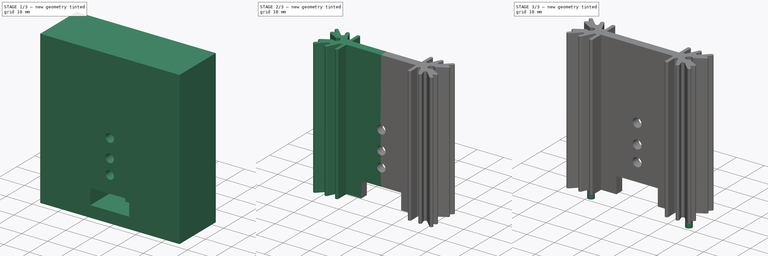
[diagram: build sequence overview — one tinted view per stage of 3, left to right]
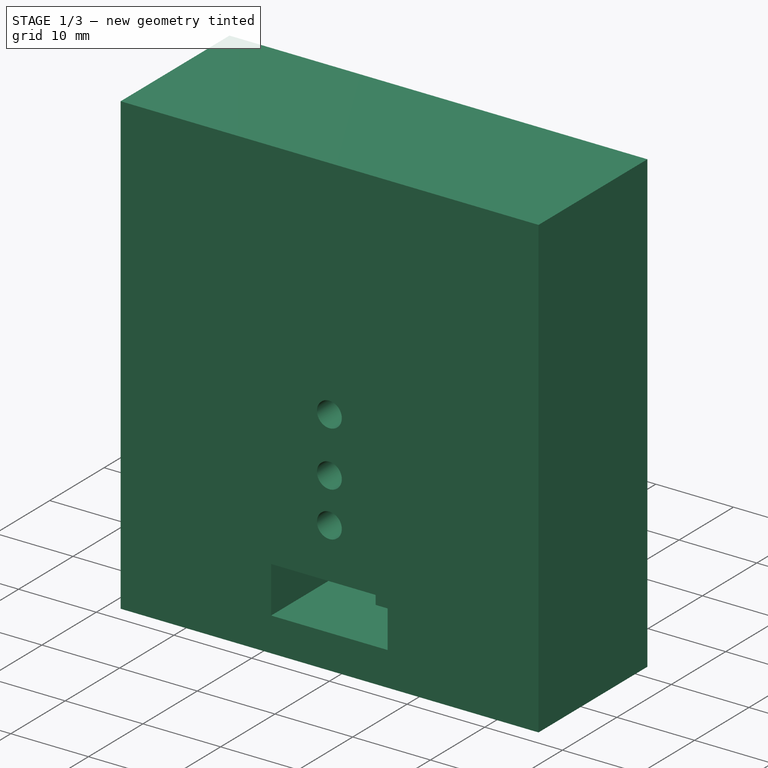
[diagram: stage 1 of 3 — iso view after this stage's code; geometry added in this stage tinted green]
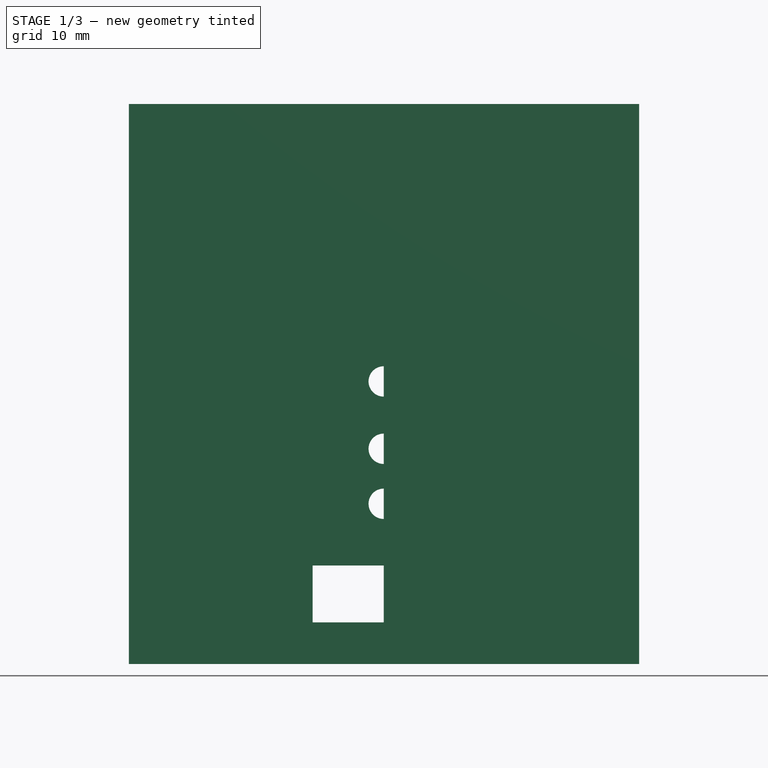
[diagram: stage 1 of 3 — front view after this stage's code; geometry added in this stage tinted green]
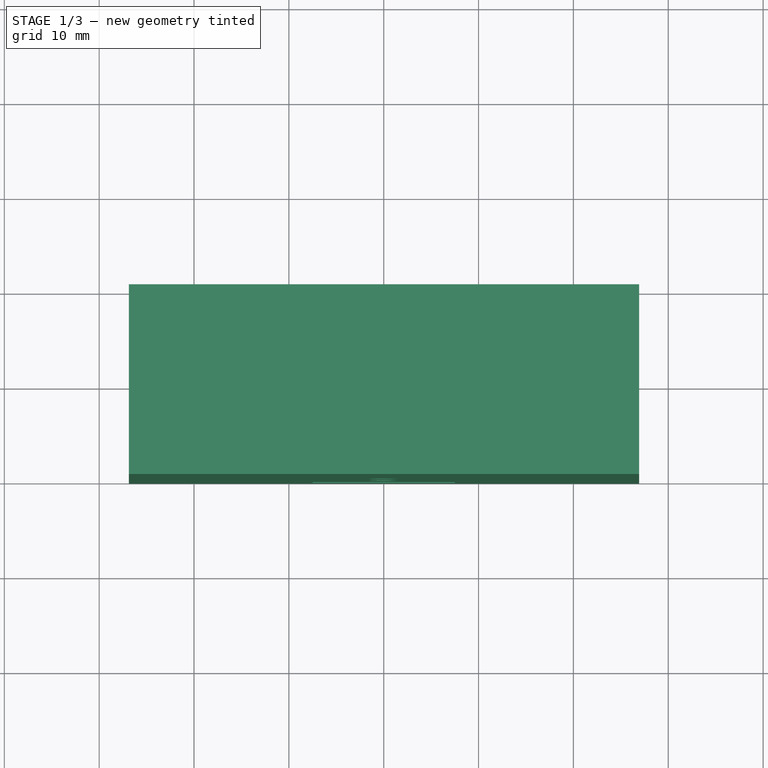
[diagram: stage 1 of 3 — top view after this stage's code; geometry added in this stage tinted green]
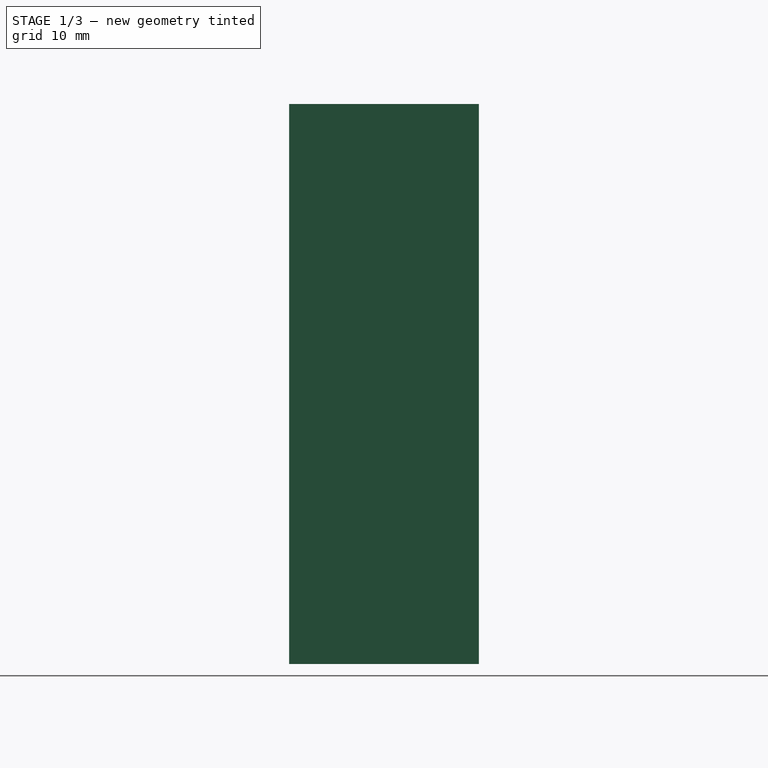
[diagram: stage 1 of 3 — right view after this stage's code; geometry added in this stage tinted green]
FCSTD DOCUMENT  (FreeCAD 0.17R13522 (Git))
Label: SK409_50,8_STS
License: All rights reserved
LicenseURL: http://en.wikipedia.org/wiki/All_rights_reserved
objects: Sketcher::SketchObject×4, Part::Extrusion×2, Image::ImagePlane×1, Part::Mirroring×1, Part::MultiFuse×1, PartDesign::Pad×1, PartDesign::Body×1, Part::MultiCommon×1, Part::Compound×1, Part::Feature×1
note: 14 computed .brp shape members not serialized (recipe doc carries the construction recipe); baked Part::Feature solids carry a one-line shape summary decoded from their .brp

FEATURE [Sketcher::SketchObject] Sketch
  MapMode = 5
  Support = -> [XY_Plane]
  sketch-geometry (34):
    g0: LineSegment StartX=13.1 StartY=-1.5 StartZ=0 EndX=13.1 EndY=-5.66811 EndZ=0
    g1: LineSegment StartX=18.6943 StartY=3.51719 StartZ=0 EndX=21.4471 EndY=6.19337 EndZ=0
    g2: LineSegment StartX=15.3567 StartY=2.27513 StartZ=0 EndX=17.0923 EndY=5.93894 EndZ=0
    g3: LineSegment StartX=18.1978 StartY=5.4753 StartZ=0 EndX=17.7128 EndY=4.15418 EndZ=0
    g4: ArcOfCircle CenterX=17.6346 CenterY=5.68207 CenterZ=0 NormalX=0 NormalY=0 NormalZ=1 AngleXU=0 Radius=0.6 StartAngle=5.93134 EndAngle=8.98237
    g5: LineSegment StartX=13.1 StartY=1.5 StartZ=0 EndX=13.1 EndY=5.66811 EndZ=0
    g6: LineSegment StartX=14.2998 StartY=5.65166 StartZ=0 EndX=14.2147 EndY=2.54845 EndZ=0
    g7: ArcOfCircle CenterX=13.7 CenterY=5.66811 CenterZ=0 NormalX=0 NormalY=0 NormalZ=1 AngleXU=0 Radius=0.6 StartAngle=6.25577 EndAngle=9.42478
    g8: ArcOfCircle CenterX=14.8145 CenterY=2.532 CenterZ=0 NormalX=0 NormalY=0 NormalZ=1 AngleXU=0 Radius=0.6 StartAngle=3.11418 EndAngle=5.84078
    g9: LineSegment StartX=22.2645 StartY=5.31514 StartZ=0 EndX=21.459 EndY=4.59763 EndZ=0
    g10: LineSegment StartX=21.6054 StartY=3.92003 StartZ=0 EndX=21.9862 EndY=3.80126 EndZ=0
    g11: LineSegment StartX=22.1017 StartY=2.70555 StartZ=0 EndX=18.6231 EndY=0.748471 EndZ=0
    g12: ArcOfCircle CenterX=17.75 CenterY=0 CenterZ=0 NormalX=0 NormalY=0 NormalZ=1 AngleXU=0 Radius=1.15 StartAngle=0.708696 EndAngle=5.62734
    g13: ArcOfCircle CenterX=18.276 CenterY=3.9474 CenterZ=0 NormalX=0 NormalY=0 NormalZ=1 AngleXU=0 Radius=0.6 StartAngle=2.78975 EndAngle=5.48366
    g14: ArcOfCircle CenterX=21.8654 CenterY=5.76316 CenterZ=0 NormalX=0 NormalY=0 NormalZ=1 AngleXU=0 Radius=0.6 StartAngle=5.44011 EndAngle=8.62525
    g15: ArcOfCircle CenterX=21.7239 CenterY=4.30024 CenterZ=0 NormalX=0 NormalY=0 NormalZ=1 AngleXU=0 Radius=0.398274 StartAngle=2.29852 EndAngle=4.41005
    g16: ArcOfCircle CenterX=21.8075 CenterY=3.22848 CenterZ=0 NormalX=0 NormalY=0 NormalZ=1 AngleXU=0 Radius=0.6 StartAngle=5.22486 EndAngle=7.55165
    g17: LineSegment StartX=18.6614 StartY=-0.701302 StartZ=0 EndX=22.1095 EndY=-2.71003 EndZ=0
    g18: LineSegment StartX=21.9862 StartY=-3.80126 StartZ=0 EndX=21.6054 EndY=-3.92003 EndZ=0
    g19: LineSegment StartX=21.459 StartY=-4.59763 StartZ=0 EndX=22.2645 EndY=-5.31514 EndZ=0
    g20: LineSegment StartX=21.4471 StartY=-6.19337 StartZ=0 EndX=18.6943 EndY=-3.51719 EndZ=0
    g21: LineSegment StartX=17.7128 StartY=-4.15418 StartZ=0 EndX=18.1978 EndY=-5.4753 EndZ=0
    g22: LineSegment StartX=17.0923 StartY=-5.93894 StartZ=0 EndX=15.3567 EndY=-2.27513 EndZ=0
    g23: LineSegment StartX=14.2147 StartY=-2.54845 StartZ=0 EndX=14.2998 EndY=-5.65166 EndZ=0
    g24: ArcOfCircle CenterX=21.8075 CenterY=-3.22848 CenterZ=0 NormalX=0 NormalY=0 NormalZ=1 AngleXU=0 Radius=0.6 StartAngle=5.01472 EndAngle=7.32649
    g25: ArcOfCircle CenterX=21.7239 CenterY=-4.30024 CenterZ=0 NormalX=0 NormalY=0 NormalZ=1 AngleXU=0 Radius=0.398274 StartAngle=1.87313 EndAngle=3.98467
    g26: ArcOfCircle CenterX=21.8654 CenterY=-5.76316 CenterZ=0 NormalX=0 NormalY=0 NormalZ=1 AngleXU=0 Radius=0.6 StartAngle=3.94112 EndAngle=7.12626
    g27: ArcOfCircle CenterX=17.6346 CenterY=-5.68207 CenterZ=0 NormalX=0 NormalY=0 NormalZ=1 AngleXU=0 Radius=0.6 StartAngle=3.584 EndAngle=6.63503
    g28: ArcOfCircle CenterX=13.7 CenterY=-5.66811 CenterZ=0 NormalX=0 NormalY=0 NormalZ=1 AngleXU=0 Radius=0.6 StartAngle=3.14159 EndAngle=6.3106
    g29: ArcOfCircle CenterX=18.276 CenterY=-3.9474 CenterZ=0 NormalX=0 NormalY=0 NormalZ=1 AngleXU=0 Radius=0.6 StartAngle=0.799523 EndAngle=3.49343
    g30: ArcOfCircle CenterX=14.8145 CenterY=-2.532 CenterZ=0 NormalX=0 NormalY=0 NormalZ=1 AngleXU=0 Radius=0.6 StartAngle=0.442406 EndAngle=3.16901
    g31: LineSegment StartX=13.1 StartY=1.5 StartZ=0 EndX=0 EndY=1.5 EndZ=0
    g32: LineSegment StartX=0 StartY=1.5 StartZ=0 EndX=0 EndY=-1.5 EndZ=0
    g33: LineSegment StartX=0 StartY=-1.5 StartZ=0 EndX=13.1 EndY=-1.5 EndZ=0
  constraints (67):
    c: Symmetric(g0,g5,g-1)
    c: DistanceY(g0,g5) = 3
    c: Tangent(g2,g4) = 1.5708
    c: Tangent(g3,g4) = 1.5708
    c: Tangent(g5,g7) = 1.5708
    c: Tangent(g6,g7) = 1.5708
    c: Tangent(g6,g8) = -1.5708
    c: Tangent(g2,g8) = -1.5708
    c: Radius(g7) = 0.6
    c: Equal(g8,g7)
    c: Equal(g7,g4)
    c: Vertical(g5)
    c: PointOnObject(g12,g-1)
    c: Radius(g12) = 1.15
    c: DistanceX(g-1,g12) = 17.75
    c: Tangent(g3,g13) = -1.5708
    c: Tangent(g1,g13) = -1.5708
    c: Tangent(g1,g14) = 1.5708
    c: Tangent(g9,g14) = 1.5708
    c: Tangent(g9,g15) = -1.5708
    c: Tangent(g10,g15) = -1.5708
    c: Tangent(g10,g16) = 1.5708
    c: Tangent(g11,g16) = 1.5708
    c: Equal(g4,g13)
    c: Equal(g13,g14)
    c: Equal(g16,g14)
    c: Tangent(g17,g24) = 1.5708
    c: Tangent(g18,g24) = 1.5708
    c: Tangent(g18,g25) = -1.5708
    c: Tangent(g19,g25) = -1.5708
    c: Tangent(g20,g26) = 1.5708
    c: Tangent(g19,g26) = 1.5708
    c: Tangent(g21,g27) = 1.5708
    c: Tangent(g22,g27) = 1.5708
    c: Tangent(g23,g28) = 1.5708
    c: Tangent(g0,g28) = -1.5708
    c: Equal(g28,g27)
    c: Equal(g27,g26)
    c: Equal(g26,g24)
    c: Equal(g24,g16)
    c: Tangent(g21,g29) = -1.5708
    c: Tangent(g20,g29) = -1.5708
    c: Equal(g29,g27)
    c: Tangent(g23,g30) = -1.5708
    c: Tangent(g22,g30) = -1.5708
    c: Equal(g30,g28)
    c: Symmetric(g28,g7,g-1)
    c: Symmetric(g30,g8,g-1)
    c: Symmetric(g27,g4,g-1)
    c: Symmetric(g29,g13,g-1)
    c: Symmetric(g26,g14,g-1)
    c: Symmetric(g24,g16,g-1)
    c: Symmetric(g25,g15,g-1)
    c: Symmetric(g18,g10,g-1)
    c: Symmetric(g18,g10,g-1)
    c: Symmetric(g19,g9,g-1)
    c: Coincident(g12,g11)
    c: Coincident(g12,g17)
    c: Coincident(g5,g31)
    c: PointOnObject(g31,g-2)
    c: Horizontal(g31)
    c: Coincident(g31,g32)
    c: Coincident(g32,g33)
    c: Coincident(g33,g0)
    c: Horizontal(g33)
    c: Vertical(g32)
    c: DistanceX(g31,g5) = 13.1
FEATURE [Image::ImagePlane] ImagePlane
  XSize = 45
  YSize = 12.7
FEATURE [Part::Extrusion] Extrude
  Base = -> Sketch
  Dir = (0,0,1)
  DirMode = 2
  FaceMakerClass = Part::FaceMakerBullseye
  LengthFwd = 50.8
  LengthRev = 0
  Solid = true
  Symmetric = false
FEATURE [Sketcher::SketchObject] Sketch006  label="otwory"
  MapMode = 5
  Placement = pos=(0,0,0) rot=(1,0,0;1.5708rad)
  Support = -> [XZ_Plane]
  sketch-geometry (11):
    g0: Circle CenterX=0 CenterY=25.4 CenterZ=0 NormalX=0 NormalY=0 NormalZ=1 AngleXU=0 Radius=1.6
    g1: Circle CenterX=0 CenterY=18.3 CenterZ=0 NormalX=0 NormalY=0 NormalZ=1 AngleXU=0 Radius=1.6
    g2: Circle CenterX=0 CenterY=12.5 CenterZ=0 NormalX=0 NormalY=0 NormalZ=1 AngleXU=0 Radius=1.6
    g3: LineSegment StartX=-7.5 StartY=6 StartZ=0 EndX=7.5 EndY=6 EndZ=0
    g4: LineSegment StartX=7.5 StartY=6 StartZ=0 EndX=7.5 EndY=0 EndZ=0
    g5: LineSegment StartX=7.5 StartY=0 StartZ=0 EndX=-7.5 EndY=0 EndZ=0
    g6: LineSegment StartX=-7.5 StartY=0 StartZ=0 EndX=-7.5 EndY=6 EndZ=0
    g7: LineSegment StartX=26.9221 StartY=-4.38908 StartZ=0 EndX=-26.8629 EndY=-4.38908 EndZ=0
    g8: LineSegment StartX=-26.8629 StartY=-4.38908 StartZ=0 EndX=-26.8629 EndY=54.6502 EndZ=0
    g9: LineSegment StartX=-26.8629 StartY=54.6502 StartZ=0 EndX=26.9221 EndY=54.6502 EndZ=0
    g10: LineSegment StartX=26.9221 StartY=54.6502 StartZ=0 EndX=26.9221 EndY=-4.38908 EndZ=0
  constraints (29):
    c: PointOnObject(g0,g-2)
    c: PointOnObject(g1,g-2)
    c: PointOnObject(g2,g-2)
    c: Equal(g0,g1)
    c: Equal(g1,g2)
    c: Radius(g0) = 1.6
    c: Coincident(g3,g4)
    c: Coincident(g4,g5)
    c: Coincident(g5,g6)
    c: Coincident(g6,g3)
    c: Horizontal(g3)
    c: Horizontal(g5)
    c: Vertical(g4)
    c: Vertical(g6)
    c: Symmetric(g4,g5,g-2)
    c: PointOnObject(g4,g-1)
    c: DistanceX(g5,g5) = 15
    c: DistanceY(g4,g4) = 6
    c: DistanceY(g-1,g2) = 12.5
    c: DistanceY(g-1,g1) = 18.3
    c: DistanceY(g5,g0) = 25.4
    c: Coincident(g7,g8)
    c: Coincident(g8,g9)
    c: Coincident(g9,g10)
    c: Coincident(g10,g7)
    c: Horizontal(g7)
    c: Horizontal(g9)
    c: Vertical(g8)
    c: Vertical(g10)
FEATURE [PartDesign::Pad] Pad
  Length = 20
  Length2 = 100
  Midplane = true
  Placement = pos=(0,0,0) rot=(1,0,0;1.5708rad)
  Profile = -> Sketch006
  Type = 0
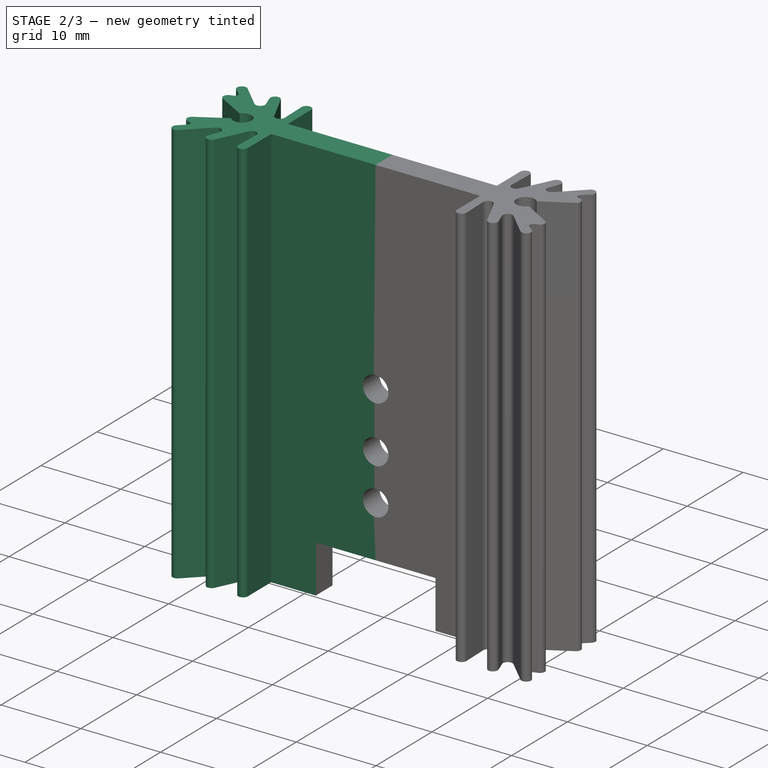
[diagram: stage 2 of 3 — iso view after this stage's code; geometry added in this stage tinted green]
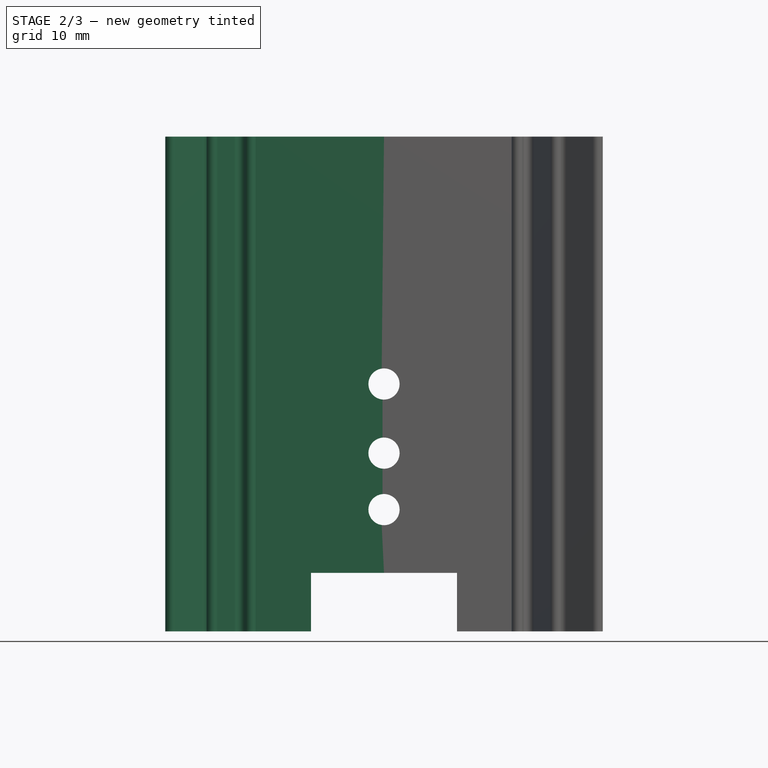
[diagram: stage 2 of 3 — front view after this stage's code; geometry added in this stage tinted green]
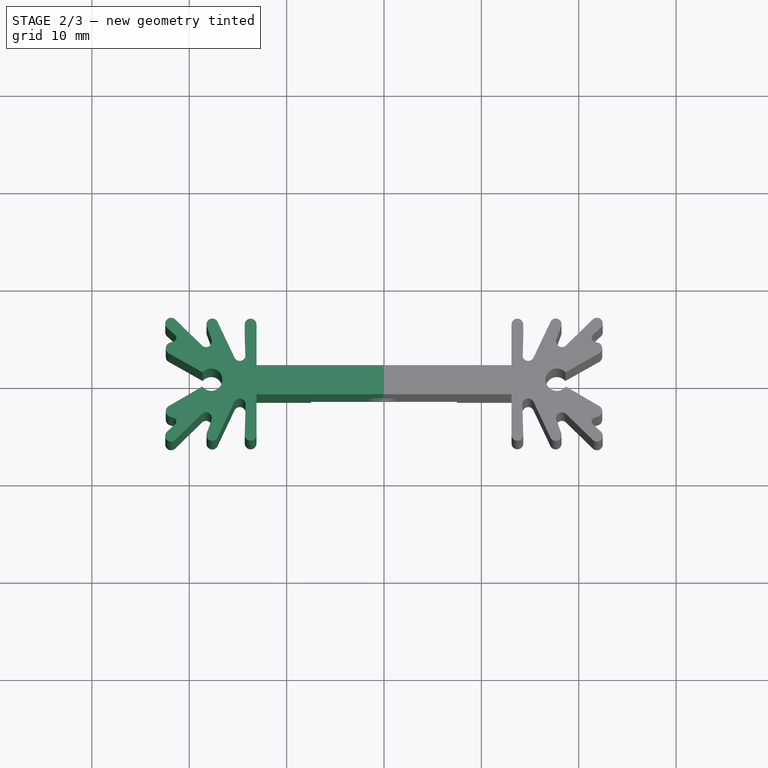
[diagram: stage 2 of 3 — top view after this stage's code; geometry added in this stage tinted green]
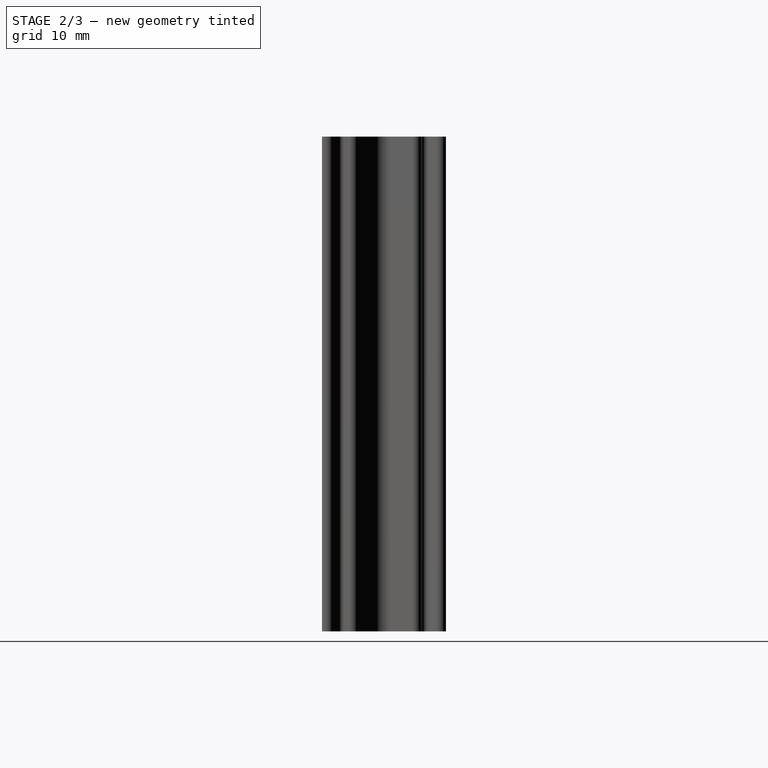
[diagram: stage 2 of 3 — right view after this stage's code; geometry added in this stage tinted green]
FEATURE [Part::Mirroring] Part__Mirroring  label="Extrude (Mirror #1)"
  Base = (0,0,0)
  Normal = (1,0,0)
  Source = -> Extrude
FEATURE [Part::MultiFuse] Fusion
  Shapes = -> [Extrude,Part__Mirroring]
FEATURE [PartDesign::Body] Body
  Group = -> [Sketch,Sketch001,Sketch006,Pad]
  Origin = -> Origin
  Tip = -> Pad
FEATURE [Part::MultiCommon] Common
  Shapes = -> [Pad,Fusion]
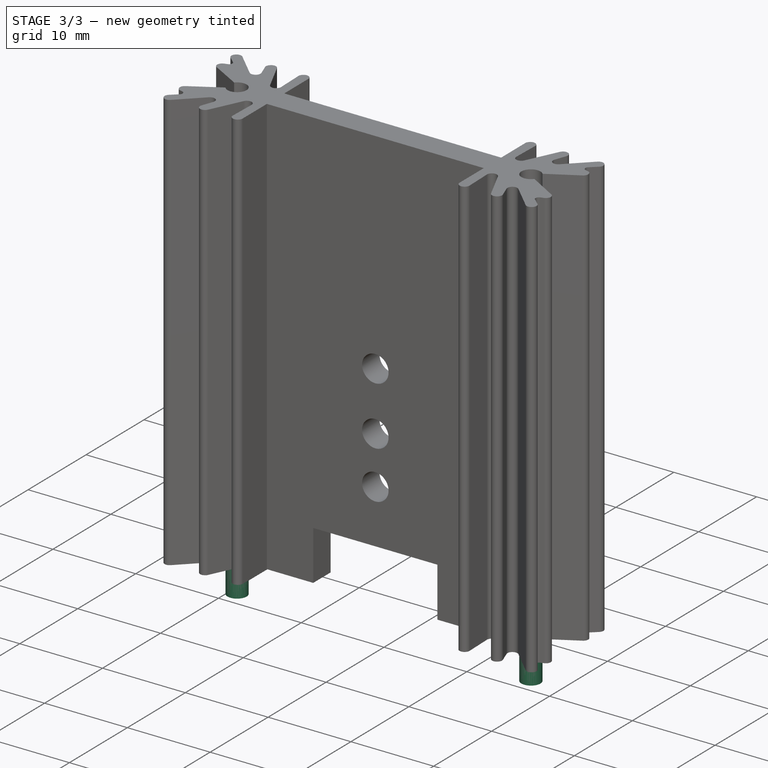
[diagram: stage 3 of 3 — iso view after this stage's code; geometry added in this stage tinted green]
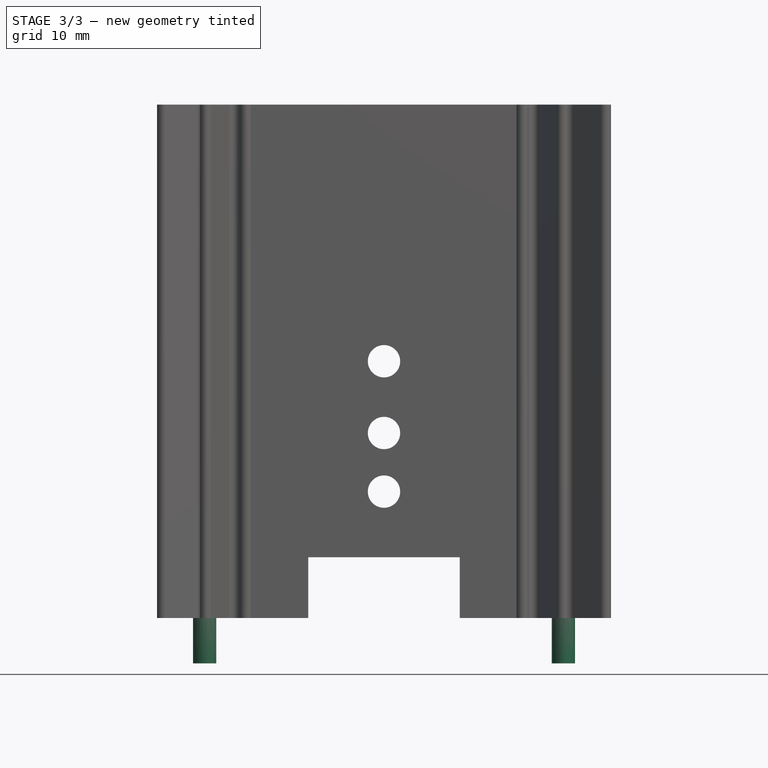
[diagram: stage 3 of 3 — front view after this stage's code; geometry added in this stage tinted green]
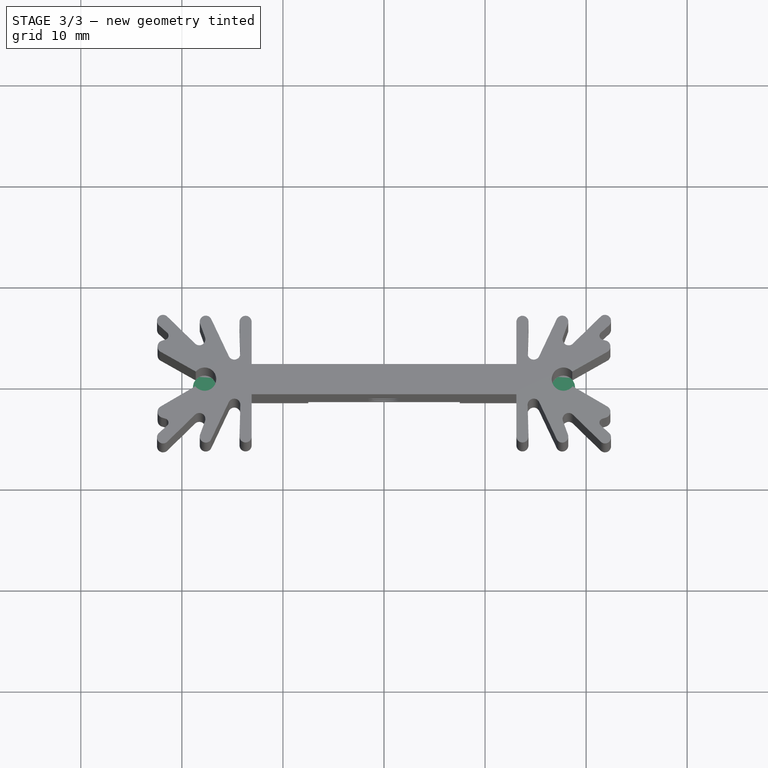
[diagram: stage 3 of 3 — top view after this stage's code; geometry added in this stage tinted green]
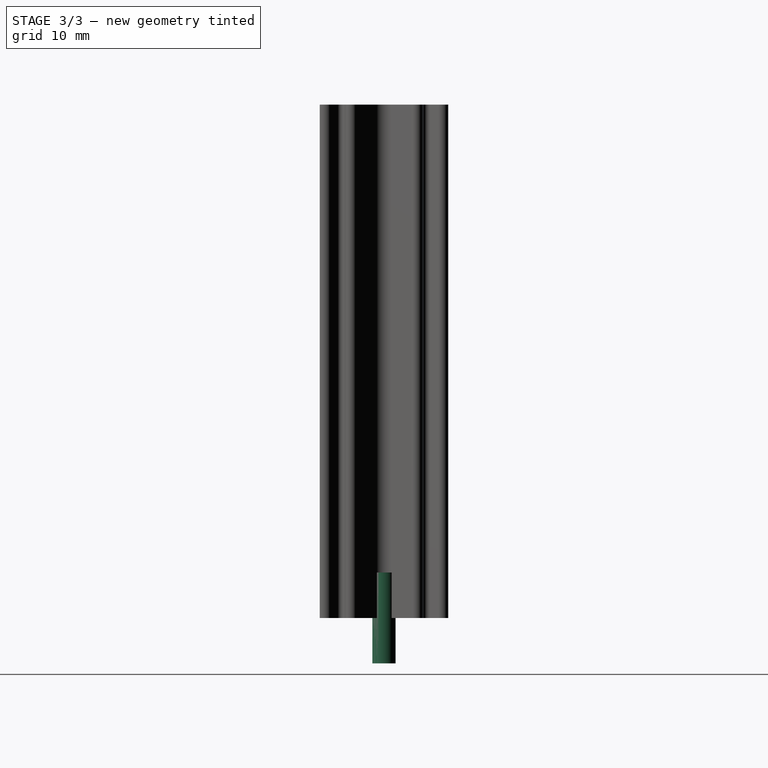
[diagram: stage 3 of 3 — right view after this stage's code; geometry added in this stage tinted green]
FEATURE [Sketcher::SketchObject] Sketch001
  MapMode = 5
  Support = -> [XY_Plane]
  sketch-geometry (2):
    g0: Circle CenterX=-17.75 CenterY=0 CenterZ=0 NormalX=0 NormalY=0 NormalZ=1 AngleXU=0 Radius=1.15
    g1: Circle CenterX=17.75 CenterY=0 CenterZ=0 NormalX=0 NormalY=0 NormalZ=1 AngleXU=0 Radius=1.15
  constraints (6):
    c: PointOnObject(g0,g-1)
    c: PointOnObject(g1,g-1)
    c: Equal(g1,g0)
    c: Radius(g0) = 1.15
    c: DistanceX(g0,g1) = 35.5
    c: Symmetric(g0,g1,g-2)
FEATURE [Sketcher::SketchObject] Sketch002
  MapMode = 5
  Support = -> [XY_Plane]
  sketch-geometry (2):
    g0: Circle CenterX=-17.75 CenterY=0 CenterZ=0 NormalX=0 NormalY=0 NormalZ=1 AngleXU=0 Radius=1.15
    g1: Circle CenterX=17.75 CenterY=0 CenterZ=0 NormalX=0 NormalY=0 NormalZ=1 AngleXU=0 Radius=1.15
  constraints (6):
    c: PointOnObject(g0,g-1)
    c: PointOnObject(g1,g-1)
    c: Equal(g1,g0)
    c: Radius(g0) = 1.15
    c: DistanceX(g0,g1) = 35.5
    c: Symmetric(g0,g1,g-2)
FEATURE [Part::Extrusion] Extrude001  label="piny"
  Base = -> Sketch002
  Dir = (0,0,1)
  DirMode = 2
  FaceMakerClass = Part::FaceMakerBullseye
  LengthFwd = 9
  LengthRev = 0
  Solid = true
  Symmetric = true
FEATURE [Part::Compound] Compound  label="SK409_50,8_STS"
  Links = -> [Extrude001,Common]
FEATURE [Part::Feature] Compound001  label="SK409_50,8_STS001"
  shape: bbox 44.93 x 12.73 x 55.3 mm, 82 faces, 3 solids (baked)
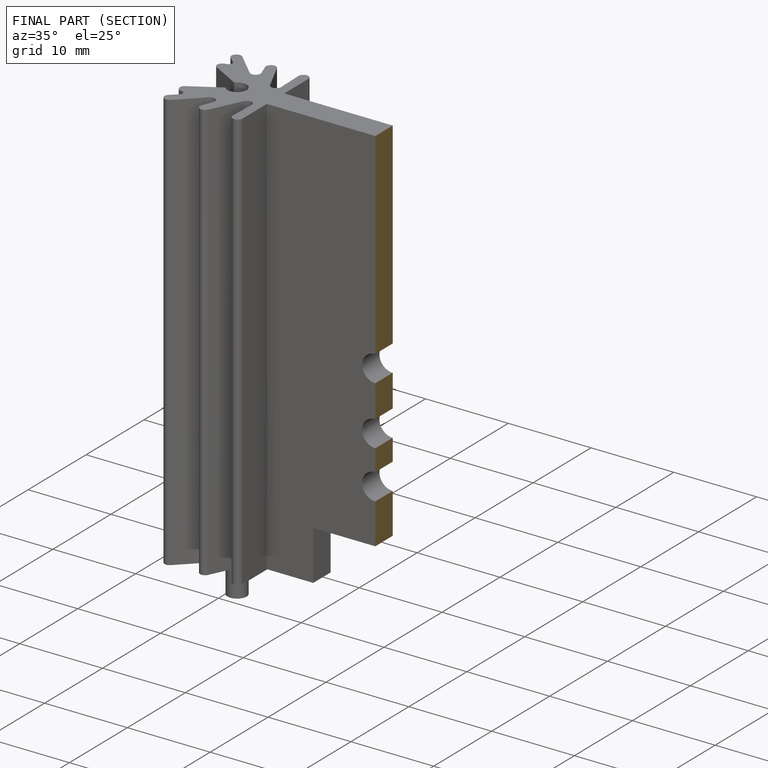
[diagram: finished part — half-section view (interior)]
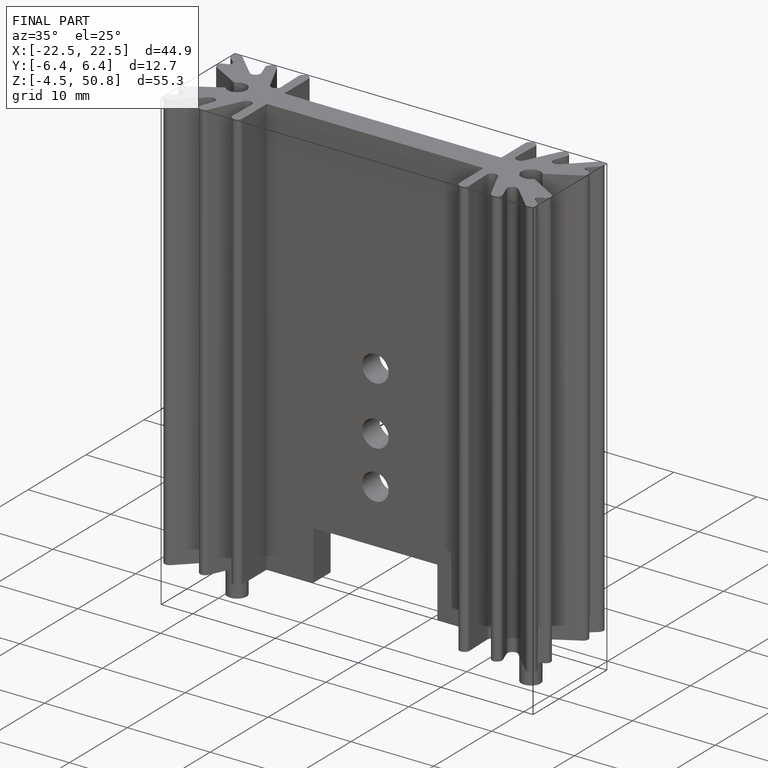
[diagram: finished part — iso view with bounding-box wireframe]
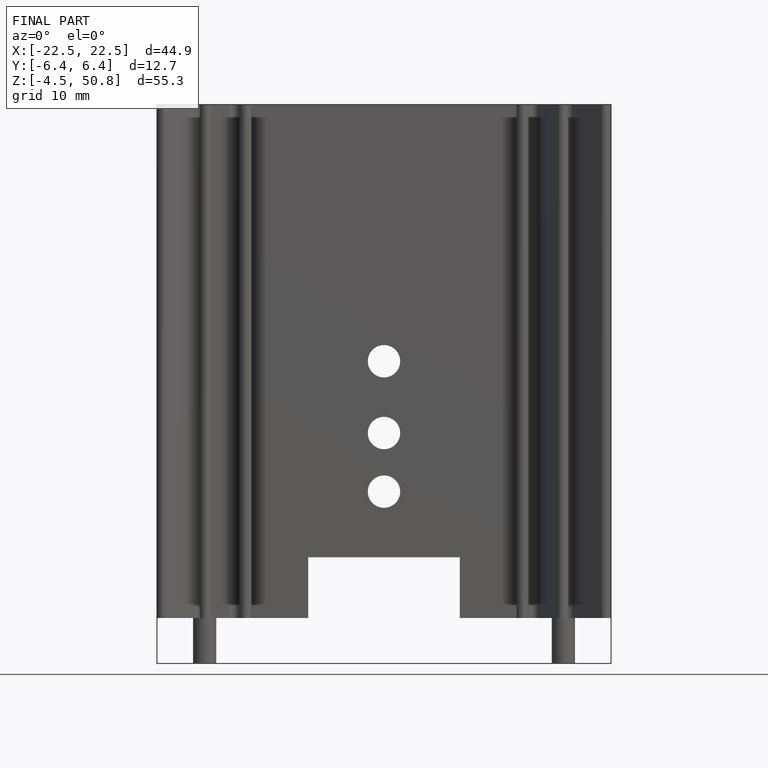
[diagram: finished part — front view with bounding-box wireframe]
